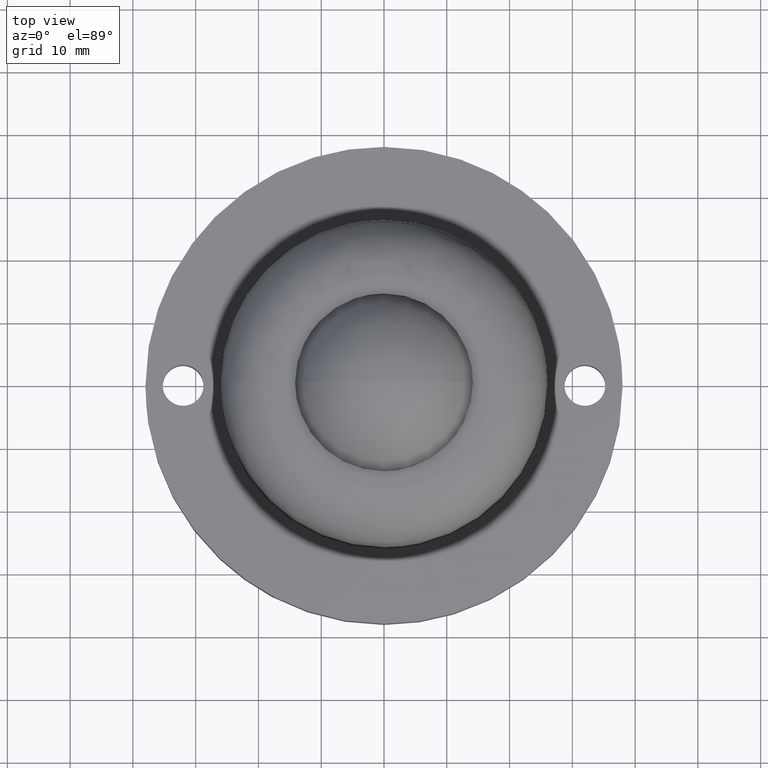
[diagram: clean part render]
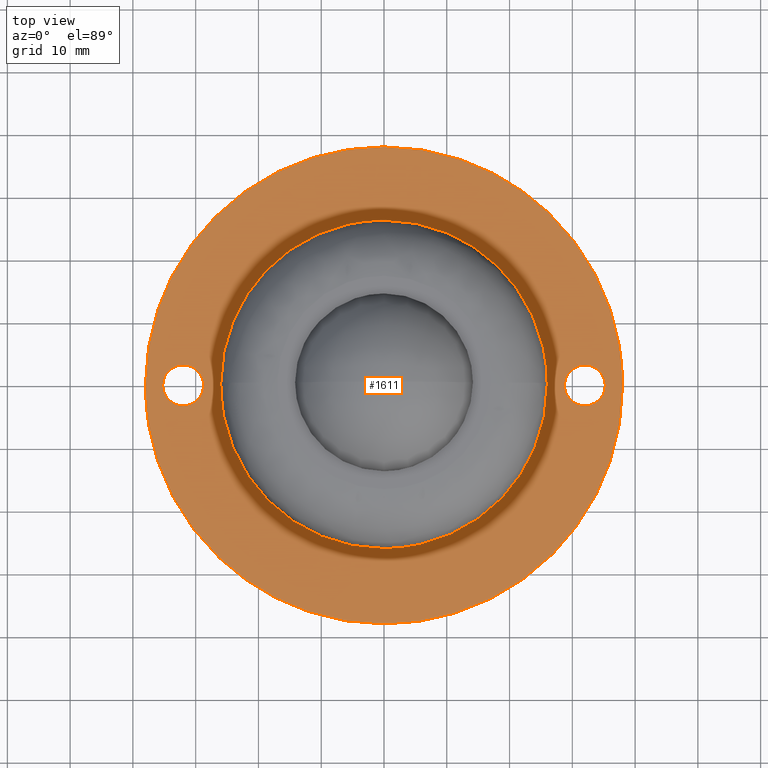
[diagram: same view with one face highlighted and labeled with its STEP entity id]
A machine part, top view. The second image highlights one B-rep face of the part: STEP entity #1611.
In plain terms, the highlighted face is a freeform B-spline surface patch.
Its self-contained STEP definition (entity closure, byte-faithful):
#1212=CARTESIAN_POINT('',(-18.859733453437560,17.897218831211831,10.000000000000449));
#1213=VERTEX_POINT('',#1212);
#1214=CARTESIAN_POINT('',(0.000000937669984,25.999999999999989,10.0));
#1215=VERTEX_POINT('',#1214);
#1216=CARTESIAN_POINT('',(-18.859733453437560,17.897218831211831,10.000000000000449));
#1217=CARTESIAN_POINT('',(-17.914151691229652,18.893771588869111,10.000000000000430));
#1218=CARTESIAN_POINT('',(-15.905513605462300,20.699596124625788,10.000000000000369));
#1219=CARTESIAN_POINT('',(-12.579970717419700,22.864098767723849,10.000000000000320));
#1220=CARTESIAN_POINT('',(-8.820427583147570,24.579215537771120,10.000000000000179));
#1221=CARTESIAN_POINT('',(-4.615818729196557,25.726058832330960,10.000000000000190));
#1222=CARTESIAN_POINT('',(-1.538623080791056,26.000147988111159,10.000000000000011));
#1223=CARTESIAN_POINT('',(0.000000937669984,25.999999999999989,10.0));
#1224=B_SPLINE_CURVE_WITH_KNOTS('',3,(#1216,#1217,#1218,#1219,#1220,#1221,#1222,#1223),.UNSPECIFIED.,.F.,.U.,(4,1,1,1,1,4),(0.000000013962300,4.121299564033723,8.077764220367293,11.869341412629860,16.485211243797838,21.101066810663330),.UNSPECIFIED.);
#1225=EDGE_CURVE('',#1213,#1215,#1224,.T.);
#1235=CARTESIAN_POINT('',(18.859733453437649,-17.897218831211919,10.000000000000449));
#1236=VERTEX_POINT('',#1235);
#1242=CARTESIAN_POINT('',(26.0,0.0,10.0));
#1243=VERTEX_POINT('',#1242);
#1244=CARTESIAN_POINT('',(26.0,0.0,10.0));
#1245=CARTESIAN_POINT('',(26.000030114585350,-1.182320656626398,10.000000000000050));
#1246=CARTESIAN_POINT('',(25.820938625188528,-3.804007948849703,10.000000000000080));
#1247=CARTESIAN_POINT('',(25.068574588979210,-7.177153379553820,10.000000000000201));
#1248=CARTESIAN_POINT('',(23.992141458538981,-10.126105795695709,10.000000000000250));
#1249=CARTESIAN_POINT('',(22.677314487009721,-12.863489558242540,10.000000000000300));
#1250=CARTESIAN_POINT('',(20.965984879518981,-15.502184787215739,10.000000000000471));
#1251=CARTESIAN_POINT('',(19.496669783928890,-17.226037776598950,10.000000000000419));
#1252=CARTESIAN_POINT('',(18.859733453437649,-17.897218831211919,10.000000000000449));
#1253=B_SPLINE_CURVE_WITH_KNOTS('',3,(#1244,#1245,#1246,#1247,#1248,#1249,#1250,#1251,#1252),.UNSPECIFIED.,.F.,.U.,(4,1,1,1,1,1,4),(0.000000012725373,3.546971912634241,7.865049410355438,10.332490197578590,12.954172374082360,16.963808447742370,19.739702720571412),.UNSPECIFIED.);
#1254=EDGE_CURVE('',#1243,#1236,#1253,.T.);
#1256=CARTESIAN_POINT('',(0.000000937669984,25.999999999999989,10.0));
#1257=CARTESIAN_POINT('',(0.850844235318469,26.000003435487098,9.999999999999998));
#1258=CARTESIAN_POINT('',(2.924785852278291,25.898133632413280,10.0));
#1259=CARTESIAN_POINT('',(6.603568526277551,25.271594488074140,10.000000000000080));
#1260=CARTESIAN_POINT('',(10.337588241127980,23.974212271024442,9.999999999999806));
#1261=CARTESIAN_POINT('',(13.391672516563840,22.341506757626711,10.000000000000229));
#1262=CARTESIAN_POINT('',(15.992099205565401,20.580871824105639,9.999999999999814));
#1263=CARTESIAN_POINT('',(18.207408955865390,18.658073207388110,10.000000000000190));
#1264=CARTESIAN_POINT('',(20.231561094373621,16.396913958864602,9.999999999999940));
#1265=CARTESIAN_POINT('',(21.804244884793000,14.249009350151640,10.000000000000080));
#1266=CARTESIAN_POINT('',(23.118322027036491,11.994297003632701,9.999999999999817));
#1267=CARTESIAN_POINT('',(24.307411840777100,9.377096115419560,9.999999999999993));
#1268=CARTESIAN_POINT('',(25.168543695698279,6.743300477804596,10.000000000000020));
#1269=CARTESIAN_POINT('',(25.832384785748211,3.509723484742368,10.000000000000011));
#1270=CARTESIAN_POINT('',(26.000086110423030,1.329454909173348,10.0));
#1271=CARTESIAN_POINT('',(26.0,0.0,10.0));
#1272=B_SPLINE_CURVE_WITH_KNOTS('',3,(#1256,#1257,#1258,#1259,#1260,#1261,#1262,#1263,#1264,#1265,#1266,#1267,#1268,#1269,#1270,#1271),.UNSPECIFIED.,.F.,.U.,(4,1,1,1,1,1,1,1,1,1,1,1,1,4),(0.000000047681453,2.552537376958050,6.221835085398091,11.167398415340021,14.358083796721530,16.591587919005320,20.579889383392171,23.132461344885421,25.685012367446220,28.556622437393500,30.949645942676810,34.299867382881551,36.852413289023261,40.840768035391598),.UNSPECIFIED.);
#1273=EDGE_CURVE('',#1215,#1243,#1272,.T.);
#1296=CARTESIAN_POINT('',(-26.0,0.0,10.0));
#1297=VERTEX_POINT('',#1296);
#1298=CARTESIAN_POINT('',(-26.0,0.0,10.0));
#1299=CARTESIAN_POINT('',(-26.000062718652931,1.387944358350477,10.000000000000050));
#1300=CARTESIAN_POINT('',(-25.760782721160531,4.369461418965334,10.000000000000091));
#1301=CARTESIAN_POINT('',(-24.769401880425551,8.218794714015054,10.000000000000220));
#1302=CARTESIAN_POINT('',(-23.464808315481580,11.300728324181120,10.000000000000270));
#1303=CARTESIAN_POINT('',(-21.734228179364880,14.459697394146099,10.000000000000330));
#1304=CARTESIAN_POINT('',(-20.133880637469531,16.555059737905239,10.000000000000441));
#1305=CARTESIAN_POINT('',(-18.859733453437560,17.897218831211831,10.000000000000449));
#1306=B_SPLINE_CURVE_WITH_KNOTS('',3,(#1298,#1299,#1300,#1301,#1302,#1303,#1304,#1305),.UNSPECIFIED.,.F.,.U.,(4,1,1,1,1,4),(0.000000012718726,4.163840380369164,8.944567807218679,11.874653322943860,14.187910205831500,19.739702720571419),.UNSPECIFIED.);
#1307=EDGE_CURVE('',#1297,#1213,#1306,.T.);
#1309=CARTESIAN_POINT('',(-0.000000937669494,-25.999999999999979,10.0));
#1310=VERTEX_POINT('',#1309);
#1311=CARTESIAN_POINT('',(-0.000000937669494,-25.999999999999979,10.0));
#1312=CARTESIAN_POINT('',(-1.542165150938767,-26.000142584536359,9.999999999999982));
#1313=CARTESIAN_POINT('',(-4.520080268791433,-25.734272222118509,10.000000000000041));
#1314=CARTESIAN_POINT('',(-8.541509144818868,-24.661194076482701,10.000000000000011));
#1315=CARTESIAN_POINT('',(-11.717265402243349,-23.276602185372941,9.999999999999993));
#1316=CARTESIAN_POINT('',(-14.339258079200500,-21.748450908948520,10.000000000000030));
#1317=CARTESIAN_POINT('',(-16.783582203491441,-19.947249813463671,9.999999999999920));
#1318=CARTESIAN_POINT('',(-19.215521856592389,-17.631898550334540,10.000000000000259));
#1319=CARTESIAN_POINT('',(-21.213747142214391,-15.135112855203630,9.999999999999787));
#1320=CARTESIAN_POINT('',(-22.878020496273180,-12.470916503018580,10.000000000000311));
#1321=CARTESIAN_POINT('',(-24.208074152909369,-9.681005222811159,10.000000000000030));
#1322=CARTESIAN_POINT('',(-25.168543037541919,-6.743299036080187,9.999999999999947));
#1323=CARTESIAN_POINT('',(-25.832374926661998,-3.509720638990650,10.000000000000050));
#1324=CARTESIAN_POINT('',(-26.000090891844859,-1.329456277780479,9.999999999999981));
#1325=CARTESIAN_POINT('',(-26.0,0.0,10.0));
#1326=B_SPLINE_CURVE_WITH_KNOTS('',3,(#1311,#1312,#1313,#1314,#1315,#1316,#1317,#1318,#1319,#1320,#1321,#1322,#1323,#1324,#1325),.UNSPECIFIED.,.F.,.U.,(4,1,1,1,1,1,1,1,1,1,1,1,4),(0.000000047673083,4.626470133979389,8.933913233814192,12.443672289234771,14.996221850880801,18.027401931789111,21.537089332013611,25.046875898182080,27.599421104138251,30.949645942676881,34.299867382881708,36.852413289023552,40.840768035391918),.UNSPECIFIED.);
#1327=EDGE_CURVE('',#1310,#1297,#1326,.T.);
#1329=CARTESIAN_POINT('',(18.859733453437649,-17.897218831211919,10.000000000000449));
#1330=CARTESIAN_POINT('',(17.800720327435890,-19.013398462509610,10.000000000000460));
#1331=CARTESIAN_POINT('',(15.773300234572909,-20.801372631559101,10.000000000000320));
#1332=CARTESIAN_POINT('',(12.754647813529321,-22.725439865301830,10.000000000000369));
#1333=CARTESIAN_POINT('',(10.228109688538179,-23.946394226604959,10.000000000000160));
#1334=CARTESIAN_POINT('',(7.597859798793640,-24.921670648964021,10.000000000000201));
#1335=CARTESIAN_POINT('',(4.231157669425583,-25.760264384167670,10.000000000000110));
#1336=CARTESIAN_POINT('',(1.538624149280733,-26.000153087904309,10.000000000000030));
#1337=CARTESIAN_POINT('',(-0.000000937669494,-25.999999999999979,10.0));
#1338=B_SPLINE_CURVE_WITH_KNOTS('',3,(#1329,#1330,#1331,#1332,#1333,#1334,#1335,#1336,#1337),.UNSPECIFIED.,.F.,.U.,(4,1,1,1,1,1,4),(0.000000013965895,4.615855580826871,8.077764220368556,10.715370031233610,13.023302604255459,16.485211243797579,21.101066810662878),.UNSPECIFIED.);
#1339=EDGE_CURVE('',#1236,#1310,#1338,.T.);
#1349=CARTESIAN_POINT('',(-41.796199852697249,-41.796199852697242,10.0));
#1350=CARTESIAN_POINT('',(41.796201891176104,-41.796199852697242,10.0));
#1351=CARTESIAN_POINT('',(-41.796199852697249,41.796201891176104,10.0));
#1352=CARTESIAN_POINT('',(41.796201891176104,41.796201891176104,10.0));
#1353=B_SPLINE_SURFACE_WITH_KNOTS('',1,1,((#1349,#1351),(#1350,#1352)),.UNSPECIFIED.,.F.,.F.,.U.,(2,2),(2,2),(0.0,83.592401743873353),(0.0,83.592401743873339),.UNSPECIFIED.);
#1354=CARTESIAN_POINT('',(-26.157473891689861,-27.564226083921952,10.0));
#1355=VERTEX_POINT('',#1354);
#1356=CARTESIAN_POINT('',(-38.0,0.0,10.0));
#1357=VERTEX_POINT('',#1356);
#1358=CARTESIAN_POINT('',(-26.157473891689861,-27.564226083921952,10.0));
#1359=CARTESIAN_POINT('',(-27.905383838530739,-25.905920635368851,9.999999999999993));
#1360=CARTESIAN_POINT('',(-30.660085047447041,-22.741923308706419,10.000000000000020));
#1361=CARTESIAN_POINT('',(-33.486873638640887,-18.147929570148829,9.999999999999988));
#1362=CARTESIAN_POINT('',(-35.313819938473138,-14.209232419279759,10.000000000000011));
#1363=CARTESIAN_POINT('',(-36.522751301251510,-10.712588082947081,9.999999999999881));
#1364=CARTESIAN_POINT('',(-37.662707435798083,-5.943025234022495,10.000000000000080));
#1365=CARTESIAN_POINT('',(-38.000333537338982,-2.409403382462443,9.999999999999966));
#1366=CARTESIAN_POINT('',(-38.0,0.0,10.0));
#1367=B_SPLINE_CURVE_WITH_KNOTS('',3,(#1358,#1359,#1360,#1361,#1362,#1363,#1364,#1365,#1366),.UNSPECIFIED.,.F.,.U.,(4,1,1,1,1,1,4),(6.089927E-009,7.228128214624093,12.528763079674480,16.142808624630209,20.238754238020810,23.611891310996128,30.840019519529189),.UNSPECIFIED.);
#1368=EDGE_CURVE('',#1355,#1357,#1367,.T.);
#1369=ORIENTED_EDGE('',*,*,#1368,.F.);
#1370=CARTESIAN_POINT('',(0.0,-38.0,10.0));
#1371=VERTEX_POINT('',#1370);
#1372=CARTESIAN_POINT('',(0.0,-38.0,10.0));
#1373=CARTESIAN_POINT('',(-2.028546607708973,-38.000156696778113,10.000000000000011));
#1374=CARTESIAN_POINT('',(-5.259124461051635,-37.740643122633600,9.999999999999988));
#1375=CARTESIAN_POINT('',(-10.337590206314870,-36.671013695031988,10.000000000000011));
#1376=CARTESIAN_POINT('',(-14.682972445446721,-35.172172660471240,9.999999999999988));
#1377=CARTESIAN_POINT('',(-18.515577372101749,-33.246280134189263,9.999999999999984));
#1378=CARTESIAN_POINT('',(-22.279390293117221,-30.899417274987300,10.000000000000030));
#1379=CARTESIAN_POINT('',(-24.631648692373350,-29.012444600076829,9.999999999999879));
#1380=CARTESIAN_POINT('',(-26.157473891689861,-27.564226083921952,10.0));
#1381=B_SPLINE_CURVE_WITH_KNOTS('',3,(#1372,#1373,#1374,#1375,#1376,#1377,#1378,#1379,#1380),.UNSPECIFIED.,.F.,.U.,(4,1,1,1,1,1,4),(7.097299E-009,6.085614396269026,9.691916528045400,15.552117026497649,19.834604807638129,22.539326720501961,28.850334847467629),.UNSPECIFIED.);
#1382=EDGE_CURVE('',#1371,#1355,#1381,.T.);
#1383=ORIENTED_EDGE('',*,*,#1382,.F.);
#1384=CARTESIAN_POINT('',(38.0,0.0,10.0));
#1385=VERTEX_POINT('',#1384);
#1386=CARTESIAN_POINT('',(38.0,0.0,10.0));
#1387=CARTESIAN_POINT('',(38.000016058019831,-1.398982715398931,10.000000000000011));
#1388=CARTESIAN_POINT('',(37.819599233673443,-4.663295104509746,9.999999999999966));
#1389=CARTESIAN_POINT('',(36.920980454370472,-9.490109453441695,10.000000000000091));
#1390=CARTESIAN_POINT('',(35.466099525959777,-13.848828877424650,9.999999999999925));
#1391=CARTESIAN_POINT('',(33.781505492960392,-17.526642949084390,10.000000000000140));
#1392=CARTESIAN_POINT('',(31.676503212990131,-21.164173447673068,9.999999999999753));
#1393=CARTESIAN_POINT('',(29.139141066431261,-24.520366207566649,10.000000000000130));
#1394=CARTESIAN_POINT('',(25.974265528888001,-27.844515324594258,9.999999999999902));
#1395=CARTESIAN_POINT('',(22.278804113610189,-30.954163602915340,10.000000000000050));
#1396=CARTESIAN_POINT('',(17.764956999056839,-33.735435385518088,9.999999999999981));
#1397=CARTESIAN_POINT('',(12.911074633389850,-35.851432480141540,10.000000000000060));
#1398=CARTESIAN_POINT('',(8.496893646154367,-37.131511469634567,9.999999999999826));
#1399=CARTESIAN_POINT('',(4.119230567858747,-37.849603575048157,10.000000000000510));
#1400=CARTESIAN_POINT('',(1.398982529396478,-38.000032603160179,9.999999999999041));
#1401=CARTESIAN_POINT('',(0.0,-38.0,10.0));
#1402=B_SPLINE_CURVE_WITH_KNOTS('',3,(#1386,#1387,#1388,#1389,#1390,#1391,#1392,#1393,#1394,#1395,#1396,#1397,#1398,#1399,#1400,#1401),.UNSPECIFIED.,.F.,.U.,(4,1,1,1,1,1,1,1,1,1,1,1,1,4),(0.000000017775200,4.196958192233026,9.792936329085599,14.689422862083140,17.953743461424200,21.917558790327551,27.280371545114392,30.544644522137499,35.674293273395612,41.736614609533831,46.399924339290394,51.529573690941540,55.493403751083150,59.690354054898677),.UNSPECIFIED.);
#1403=EDGE_CURVE('',#1385,#1371,#1402,.T.);
#1404=ORIENTED_EDGE('',*,*,#1403,.F.);
#1405=CARTESIAN_POINT('',(26.157473891689861,27.564226083921952,10.0));
#1406=VERTEX_POINT('',#1405);
#1407=CARTESIAN_POINT('',(26.157473891689861,27.564226083921952,10.0));
#1408=CARTESIAN_POINT('',(27.905383838530739,25.905920635368851,9.999999999999993));
#1409=CARTESIAN_POINT('',(30.660085047447041,22.741923308706419,10.000000000000020));
#1410=CARTESIAN_POINT('',(33.486873638640887,18.147929570148829,9.999999999999988));
#1411=CARTESIAN_POINT('',(35.313819938473138,14.209232419279759,10.000000000000011));
#1412=CARTESIAN_POINT('',(36.522751301251510,10.712588082947081,9.999999999999881));
#1413=CARTESIAN_POINT('',(37.662707435798083,5.943025234022495,10.000000000000080));
#1414=CARTESIAN_POINT('',(38.000333537338982,2.409403382462443,9.999999999999966));
#1415=CARTESIAN_POINT('',(38.0,0.0,10.0));
#1416=B_SPLINE_CURVE_WITH_KNOTS('',3,(#1407,#1408,#1409,#1410,#1411,#1412,#1413,#1414,#1415),.UNSPECIFIED.,.F.,.U.,(4,1,1,1,1,1,4),(6.089927E-009,7.228128214624093,12.528763079674480,16.142808624630209,20.238754238020810,23.611891310996128,30.840019519529189),.UNSPECIFIED.);
#1417=EDGE_CURVE('',#1406,#1385,#1416,.T.);
#1418=ORIENTED_EDGE('',*,*,#1417,.F.);
#1419=CARTESIAN_POINT('',(0.0,38.0,10.0));
#1420=VERTEX_POINT('',#1419);
#1421=CARTESIAN_POINT('',(0.0,38.0,10.0));
#1422=CARTESIAN_POINT('',(2.028546607708973,38.000156696778113,10.000000000000011));
#1423=CARTESIAN_POINT('',(5.259124461051635,37.740643122633600,9.999999999999988));
#1424=CARTESIAN_POINT('',(10.337590206314870,36.671013695031988,10.000000000000011));
#1425=CARTESIAN_POINT('',(14.682972445446721,35.172172660471240,9.999999999999988));
#1426=CARTESIAN_POINT('',(18.515577372101749,33.246280134189263,9.999999999999984));
#1427=CARTESIAN_POINT('',(22.279390293117221,30.899417274987300,10.000000000000030));
#1428=CARTESIAN_POINT('',(24.631648692373350,29.012444600076829,9.999999999999879));
#1429=CARTESIAN_POINT('',(26.157473891689861,27.564226083921952,10.0));
#1430=B_SPLINE_CURVE_WITH_KNOTS('',3,(#1421,#1422,#1423,#1424,#1425,#1426,#1427,#1428,#1429),.UNSPECIFIED.,.F.,.U.,(4,1,1,1,1,1,4),(7.097299E-009,6.085614396269026,9.691916528045400,15.552117026497649,19.834604807638129,22.539326720501961,28.850334847467629),.UNSPECIFIED.);
#1431=EDGE_CURVE('',#1420,#1406,#1430,.T.);
#1432=ORIENTED_EDGE('',*,*,#1431,.F.);
#1433=CARTESIAN_POINT('',(-38.0,0.0,10.0));
#1434=CARTESIAN_POINT('',(-38.000016058019831,1.398982715398931,10.000000000000011));
#1435=CARTESIAN_POINT('',(-37.819599233673443,4.663295104509746,9.999999999999966));
#1436=CARTESIAN_POINT('',(-36.920980454370472,9.490109453441695,10.000000000000091));
#1437=CARTESIAN_POINT('',(-35.466099525959777,13.848828877424650,9.999999999999925));
#1438=CARTESIAN_POINT('',(-33.781505492960392,17.526642949084390,10.000000000000140));
#1439=CARTESIAN_POINT('',(-31.676503212990131,21.164173447673068,9.999999999999753));
#1440=CARTESIAN_POINT('',(-29.139141066431261,24.520366207566649,10.000000000000130));
#1441=CARTESIAN_POINT('',(-25.974265528888001,27.844515324594258,9.999999999999902));
#1442=CARTESIAN_POINT('',(-22.278804113610189,30.954163602915340,10.000000000000050));
#1443=CARTESIAN_POINT('',(-17.764956999056839,33.735435385518088,9.999999999999981));
#1444=CARTESIAN_POINT('',(-12.911074633389850,35.851432480141540,10.000000000000060));
#1445=CARTESIAN_POINT('',(-8.496893646154367,37.131511469634567,9.999999999999826));
#1446=CARTESIAN_POINT('',(-4.119230567858747,37.849603575048157,10.000000000000510));
#1447=CARTESIAN_POINT('',(-1.398982529396478,38.000032603160179,9.999999999999041));
#1448=CARTESIAN_POINT('',(0.0,38.0,10.0));
#1449=B_SPLINE_CURVE_WITH_KNOTS('',3,(#1433,#1434,#1435,#1436,#1437,#1438,#1439,#1440,#1441,#1442,#1443,#1444,#1445,#1446,#1447,#1448),.UNSPECIFIED.,.F.,.U.,(4,1,1,1,1,1,1,1,1,1,1,1,1,4),(0.000000017775200,4.196958192233026,9.792936329085599,14.689422862083140,17.953743461424200,21.917558790327551,27.280371545114392,30.544644522137499,35.674293273395612,41.736614609533831,46.399924339290394,51.529573690941540,55.493403751083150,59.690354054898677),.UNSPECIFIED.);
#1450=EDGE_CURVE('',#1357,#1420,#1449,.T.);
#1451=ORIENTED_EDGE('',*,*,#1450,.F.);
#1452=EDGE_LOOP('',(#1369,#1383,#1404,#1418,#1432,#1451));
#1453=FACE_OUTER_BOUND('',#1452,.T.);
#1454=ORIENTED_EDGE('',*,*,#1273,.T.);
#1455=ORIENTED_EDGE('',*,*,#1254,.T.);
#1456=ORIENTED_EDGE('',*,*,#1339,.T.);
#1457=ORIENTED_EDGE('',*,*,#1327,.T.);
#1458=ORIENTED_EDGE('',*,*,#1307,.T.);
#1459=ORIENTED_EDGE('',*,*,#1225,.T.);
#1460=EDGE_LOOP('',(#1454,#1455,#1456,#1457,#1458,#1459));
#1461=FACE_BOUND('',#1460,.T.);
#1462=CARTESIAN_POINT('',(31.999999127967971,-3.249999999999883,10.0));
#1463=VERTEX_POINT('',#1462);
#1464=CARTESIAN_POINT('',(28.750000000000000,0.0,10.0));
#1465=VERTEX_POINT('',#1464);
#1466=CARTESIAN_POINT('',(31.999999127967971,-3.249999999999883,10.0));
#1467=CARTESIAN_POINT('',(31.667626165340032,-3.250134262751477,9.999999999999972));
#1468=CARTESIAN_POINT('',(31.016272869201821,-3.149230271293815,10.000000000000030));
#1469=CARTESIAN_POINT('',(30.231241632268191,-2.766108341006363,10.000000000000050));
#1470=CARTESIAN_POINT('',(29.638450237910320,-2.267153464781957,9.999999999999897));
#1471=CARTESIAN_POINT('',(29.194019740300501,-1.697777688281622,10.000000000000099));
#1472=CARTESIAN_POINT('',(28.842593987818042,-0.930535831066416,9.999999999999831));
#1473=CARTESIAN_POINT('',(28.749836171714680,-0.332376277985625,10.000000000000149));
#1474=CARTESIAN_POINT('',(28.750000000000000,0.0,10.0));
#1475=B_SPLINE_CURVE_WITH_KNOTS('',3,(#1466,#1467,#1468,#1469,#1470,#1471,#1472,#1473,#1474),.UNSPECIFIED.,.F.,.U.,(4,1,1,1,1,1,4),(0.000000129775025,0.997086739149202,1.954310218396840,2.592403988745713,3.310341276803696,4.108034228417170,5.105119602862329),.UNSPECIFIED.);
#1476=EDGE_CURVE('',#1463,#1465,#1475,.T.);
#1477=ORIENTED_EDGE('',*,*,#1476,.T.);
#1478=CARTESIAN_POINT('',(29.642533527958761,2.237152301049576,10.0));
#1479=VERTEX_POINT('',#1478);
#1480=CARTESIAN_POINT('',(28.750000000000000,0.0,10.0));
#1481=CARTESIAN_POINT('',(28.749921930277139,0.282741301740138,10.000000000000011));
#1482=CARTESIAN_POINT('',(28.807398798195589,0.719629875247494,9.999999999999984));
#1483=CARTESIAN_POINT('',(29.076241262699000,1.499179720107608,9.999999999999998));
#1484=CARTESIAN_POINT('',(29.376865371994558,1.957671703990294,10.0));
#1485=CARTESIAN_POINT('',(29.642533527958761,2.237152301049576,10.0));
#1486=B_SPLINE_CURVE_WITH_KNOTS('',3,(#1480,#1481,#1482,#1483,#1484,#1485),.UNSPECIFIED.,.F.,.U.,(4,1,1,4),(0.000000027801043,0.848200205701677,1.310841350263114,2.467473724872067),.UNSPECIFIED.);
#1487=EDGE_CURVE('',#1465,#1479,#1486,.T.);
#1488=ORIENTED_EDGE('',*,*,#1487,.T.);
#1489=CARTESIAN_POINT('',(32.000000872031983,3.249999999999883,10.0));
#1490=VERTEX_POINT('',#1489);
#1491=CARTESIAN_POINT('',(29.642533527958761,2.237152301049576,10.0));
#1492=CARTESIAN_POINT('',(29.878834087379129,2.486414013768263,10.0));
#1493=CARTESIAN_POINT('',(30.309861357932039,2.815818185247772,10.000000000000011));
#1494=CARTESIAN_POINT('',(31.120917355297781,3.164211247049761,9.999999999999989));
#1495=CARTESIAN_POINT('',(31.656522683135250,3.250206304927900,10.000000000000030));
#1496=CARTESIAN_POINT('',(32.000000872031983,3.249999999999883,10.0));
#1497=B_SPLINE_CURVE_WITH_KNOTS('',3,(#1491,#1492,#1493,#1494,#1495,#1496),.UNSPECIFIED.,.F.,.U.,(4,1,1,4),(0.000000034382008,1.030333387740454,1.607313823911189,2.637647177257177),.UNSPECIFIED.);
#1498=EDGE_CURVE('',#1479,#1490,#1497,.T.);
#1499=ORIENTED_EDGE('',*,*,#1498,.T.);
#1500=CARTESIAN_POINT('',(35.250000000000000,0.0,10.0));
#1501=VERTEX_POINT('',#1500);
#1502=CARTESIAN_POINT('',(32.000000872031983,3.249999999999883,10.0));
#1503=CARTESIAN_POINT('',(32.332386639967631,3.250182664097436,10.000000000000020));
#1504=CARTESIAN_POINT('',(32.850752028110307,3.169713299381409,9.999999999999956));
#1505=CARTESIAN_POINT('',(33.627476384258223,2.848071067887774,10.000000000000041));
#1506=CARTESIAN_POINT('',(34.281019959436193,2.375756441413687,9.999999999999901));
#1507=CARTESIAN_POINT('',(34.809191067523372,1.698783141761977,10.000000000000080));
#1508=CARTESIAN_POINT('',(35.161501462011373,0.903939198279113,9.999999999999874));
#1509=CARTESIAN_POINT('',(35.250172634775140,0.332379576685613,10.000000000000160));
#1510=CARTESIAN_POINT('',(35.250000000000000,0.0,10.0));
#1511=B_SPLINE_CURVE_WITH_KNOTS('',3,(#1502,#1503,#1504,#1505,#1506,#1507,#1508,#1509,#1510),.UNSPECIFIED.,.F.,.U.,(4,1,1,1,1,1,4),(0.000000129762967,0.997086739137361,1.555475075921475,2.512715491897008,3.390108314693607,4.108034228414214,5.105119602862353),.UNSPECIFIED.);
#1512=EDGE_CURVE('',#1490,#1501,#1511,.T.);
#1513=ORIENTED_EDGE('',*,*,#1512,.T.);
#1514=CARTESIAN_POINT('',(34.357466472041231,-2.237152301049568,10.0));
#1515=VERTEX_POINT('',#1514);
#1516=CARTESIAN_POINT('',(35.250000000000000,0.0,10.0));
#1517=CARTESIAN_POINT('',(35.250158055669260,-0.334159263871427,10.000000000000020));
#1518=CARTESIAN_POINT('',(35.165999489728812,-0.873801515845074,9.999999999999996));
#1519=CARTESIAN_POINT('',(34.841676420630428,-1.633699972187402,9.999999999999975));
#1520=CARTESIAN_POINT('',(34.552158119994637,-2.032121753765394,10.000000000000041));
#1521=CARTESIAN_POINT('',(34.357466472041231,-2.237152301049568,10.0));
#1522=B_SPLINE_CURVE_WITH_KNOTS('',3,(#1516,#1517,#1518,#1519,#1520,#1521),.UNSPECIFIED.,.F.,.U.,(4,1,1,4),(0.000000027799101,1.002418568084006,1.619273546995596,2.467473724872070),.UNSPECIFIED.);
#1523=EDGE_CURVE('',#1501,#1515,#1522,.T.);
#1524=ORIENTED_EDGE('',*,*,#1523,.T.);
#1525=CARTESIAN_POINT('',(34.357466472041231,-2.237152301049568,10.0));
#1526=CARTESIAN_POINT('',(34.092884885855703,-2.516450644442041,9.999999999999991));
#1527=CARTESIAN_POINT('',(33.654172715201597,-2.838394477025960,10.000000000000011));
#1528=CARTESIAN_POINT('',(32.837886104543990,-3.170842762498670,9.999999999999991));
#1529=CARTESIAN_POINT('',(32.343473050767173,-3.250200634917029,10.0));
#1530=CARTESIAN_POINT('',(31.999999127967971,-3.249999999999883,10.0));
#1531=B_SPLINE_CURVE_WITH_KNOTS('',3,(#1525,#1526,#1527,#1528,#1529,#1530),.UNSPECIFIED.,.F.,.U.,(4,1,1,4),(0.000000034382907,1.153982466414496,1.607313823911358,2.637647177257217),.UNSPECIFIED.);
#1532=EDGE_CURVE('',#1515,#1463,#1531,.T.);
#1533=ORIENTED_EDGE('',*,*,#1532,.T.);
#1534=EDGE_LOOP('',(#1477,#1488,#1499,#1513,#1524,#1533));
#1535=FACE_BOUND('',#1534,.T.);
#1536=CARTESIAN_POINT('',(-32.000000872032032,-3.249999999999883,9.999999999999998));
#1537=VERTEX_POINT('',#1536);
#1538=CARTESIAN_POINT('',(-35.250000000000000,0.0,10.0));
#1539=VERTEX_POINT('',#1538);
#1540=CARTESIAN_POINT('',(-32.000000872032032,-3.249999999999883,9.999999999999998));
#1541=CARTESIAN_POINT('',(-32.305785682989722,-3.250122826371244,10.0));
#1542=CARTESIAN_POINT('',(-32.810908193398753,-3.178152993793574,9.999999999999982));
#1543=CARTESIAN_POINT('',(-33.419802402299432,-2.938935389051109,10.000000000000030));
#1544=CARTESIAN_POINT('',(-33.901577408026021,-2.654182335285296,9.999999999999947));
#1545=CARTESIAN_POINT('',(-34.361561982106373,-2.267174306770644,10.000000000000069));
#1546=CARTESIAN_POINT('',(-34.805980114839628,-1.697777807536818,9.999999999999973));
#1547=CARTESIAN_POINT('',(-35.157406083248162,-0.930535787967757,9.999999999999941));
#1548=CARTESIAN_POINT('',(-35.250163846450043,-0.332376255394294,10.000000000000069));
#1549=CARTESIAN_POINT('',(-35.250000000000000,0.0,10.0));
#1550=B_SPLINE_CURVE_WITH_KNOTS('',3,(#1540,#1541,#1542,#1543,#1544,#1545,#1546,#1547,#1548,#1549),.UNSPECIFIED.,.F.,.U.,(4,1,1,1,1,1,1,4),(0.000000129781110,0.917318523883469,1.515586102640933,1.954310218397753,2.592403988746322,3.310341276803939,4.108034228417267,5.105119602862198),.UNSPECIFIED.);
#1551=EDGE_CURVE('',#1537,#1539,#1550,.T.);
#1552=ORIENTED_EDGE('',*,*,#1551,.T.);
#1553=CARTESIAN_POINT('',(-34.357466472041239,2.237152301049576,10.0));
#1554=VERTEX_POINT('',#1553);
#1555=CARTESIAN_POINT('',(-35.250000000000000,0.0,10.0));
#1556=CARTESIAN_POINT('',(-35.250332625260363,0.385601049156536,9.999999999999996));
#1557=CARTESIAN_POINT('',(-35.152786962137313,0.925120157664947,9.999999999999998));
#1558=CARTESIAN_POINT('',(-34.811179429689822,1.675633624223502,10.000000000000011));
#1559=CARTESIAN_POINT('',(-34.552161448240227,2.032119395918566,10.0));
#1560=CARTESIAN_POINT('',(-34.357466472041239,2.237152301049576,10.0));
#1561=B_SPLINE_CURVE_WITH_KNOTS('',3,(#1555,#1556,#1557,#1558,#1559,#1560),.UNSPECIFIED.,.F.,.U.,(4,1,1,4),(0.000000027795656,1.156632402434636,1.619273546994471,2.467473724872088),.UNSPECIFIED.);
#1562=EDGE_CURVE('',#1539,#1554,#1561,.T.);
#1563=ORIENTED_EDGE('',*,*,#1562,.T.);
#1564=CARTESIAN_POINT('',(-31.999999127968021,3.249999999999883,10.0));
#1565=VERTEX_POINT('',#1564);
#1566=CARTESIAN_POINT('',(-34.357466472041239,2.237152301049576,10.0));
#1567=CARTESIAN_POINT('',(-34.121177320951269,2.486431626140265,10.0));
#1568=CARTESIAN_POINT('',(-33.701182144755222,2.807347896016496,10.000000000000041));
#1569=CARTESIAN_POINT('',(-32.892808606482319,3.160722590256500,9.999999999999963));
#1570=CARTESIAN_POINT('',(-32.357224311018193,3.250240559956363,10.000000000000050));
#1571=CARTESIAN_POINT('',(-31.999999127968021,3.249999999999883,10.0));
#1572=B_SPLINE_CURVE_WITH_KNOTS('',3,(#1566,#1567,#1568,#1569,#1570,#1571),.UNSPECIFIED.,.F.,.U.,(4,1,1,4),(0.000000034382797,1.030333387741110,1.566090734315122,2.637647177257171),.UNSPECIFIED.);
#1573=EDGE_CURVE('',#1554,#1565,#1572,.T.);
#1574=ORIENTED_EDGE('',*,*,#1573,.T.);
#1575=CARTESIAN_POINT('',(-28.750000000000000,0.0,10.0));
#1576=VERTEX_POINT('',#1575);
#1577=CARTESIAN_POINT('',(-31.999999127968021,3.249999999999883,10.0));
#1578=CARTESIAN_POINT('',(-31.747403920157659,3.250049208906417,9.999999999999989));
#1579=CARTESIAN_POINT('',(-31.228938573185140,3.189257057623441,9.999999999999993));
#1580=CARTESIAN_POINT('',(-30.412742142919491,2.886059746144126,10.000000000000080));
#1581=CARTESIAN_POINT('',(-29.720645963995270,2.372727252738448,10.000000000000011));
#1582=CARTESIAN_POINT('',(-29.194032702342060,1.697764119810812,10.0));
#1583=CARTESIAN_POINT('',(-28.842595682679441,0.930531907464993,9.999999999999989));
#1584=CARTESIAN_POINT('',(-28.749835606721120,0.332377560284783,10.000000000000030));
#1585=CARTESIAN_POINT('',(-28.750000000000000,0.0,10.0));
#1586=B_SPLINE_CURVE_WITH_KNOTS('',3,(#1577,#1578,#1579,#1580,#1581,#1582,#1583,#1584,#1585),.UNSPECIFIED.,.F.,.U.,(4,1,1,1,1,1,4),(0.000000129775697,0.757785345239560,1.555475075931355,2.592403988745427,3.310341276803523,4.108034228417171,5.105119602862352),.UNSPECIFIED.);
#1587=EDGE_CURVE('',#1565,#1576,#1586,.T.);
#1588=ORIENTED_EDGE('',*,*,#1587,.T.);
#1589=CARTESIAN_POINT('',(-29.642533527958769,-2.237152301049569,9.999999999999998));
#1590=VERTEX_POINT('',#1589);
#1591=CARTESIAN_POINT('',(-28.750000000000000,0.0,10.0));
#1592=CARTESIAN_POINT('',(-28.749835198436489,-0.334162045439757,10.000000000000041));
#1593=CARTESIAN_POINT('',(-28.825992064595201,-0.822397349864929,9.999999999999936));
#1594=CARTESIAN_POINT('',(-29.131589041149979,-1.588286106378953,10.000000000000050));
#1595=CARTESIAN_POINT('',(-29.412375645585321,-1.994878267270500,9.999999999999934));
#1596=CARTESIAN_POINT('',(-29.642533527958769,-2.237152301049569,9.999999999999998));
#1597=B_SPLINE_CURVE_WITH_KNOTS('',3,(#1591,#1592,#1593,#1594,#1595,#1596),.UNSPECIFIED.,.F.,.U.,(4,1,1,4),(0.000000027801047,1.002418568084665,1.465055184613474,2.467473724872075),.UNSPECIFIED.);
#1598=EDGE_CURVE('',#1576,#1590,#1597,.T.);
#1599=ORIENTED_EDGE('',*,*,#1598,.T.);
#1600=CARTESIAN_POINT('',(-29.642533527958769,-2.237152301049569,9.999999999999998));
#1601=CARTESIAN_POINT('',(-29.822165731229379,-2.426528339237339,10.0));
#1602=CARTESIAN_POINT('',(-30.238050589885169,-2.770453365773295,9.999999999999979));
#1603=CARTESIAN_POINT('',(-31.038443097080521,-3.151092552558216,10.000000000000020));
#1604=CARTESIAN_POINT('',(-31.656545200479400,-3.250176869105654,9.999999999999982));
#1605=CARTESIAN_POINT('',(-32.000000872032032,-3.249999999999883,9.999999999999998));
#1606=B_SPLINE_CURVE_WITH_KNOTS('',3,(#1600,#1601,#1602,#1603,#1604,#1605),.UNSPECIFIED.,.F.,.U.,(4,1,1,4),(0.000000034379273,0.783054728774917,1.607313823910629,2.637647177257213),.UNSPECIFIED.);
#1607=EDGE_CURVE('',#1590,#1537,#1606,.T.);
#1608=ORIENTED_EDGE('',*,*,#1607,.T.);
#1609=EDGE_LOOP('',(#1552,#1563,#1574,#1588,#1599,#1608));
#1610=FACE_BOUND('',#1609,.T.);
#1611=ADVANCED_FACE('',(#1453,#1461,#1535,#1610),#1353,.T.);